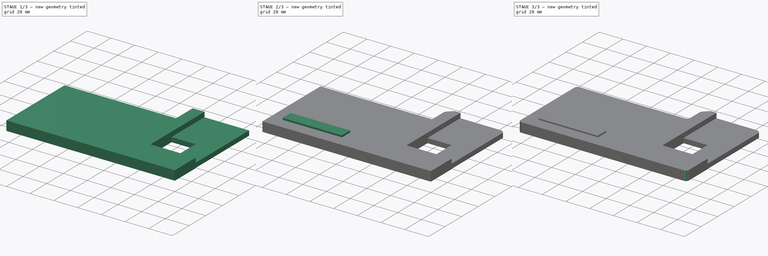
[diagram: build sequence overview — one tinted view per stage of 3, left to right]
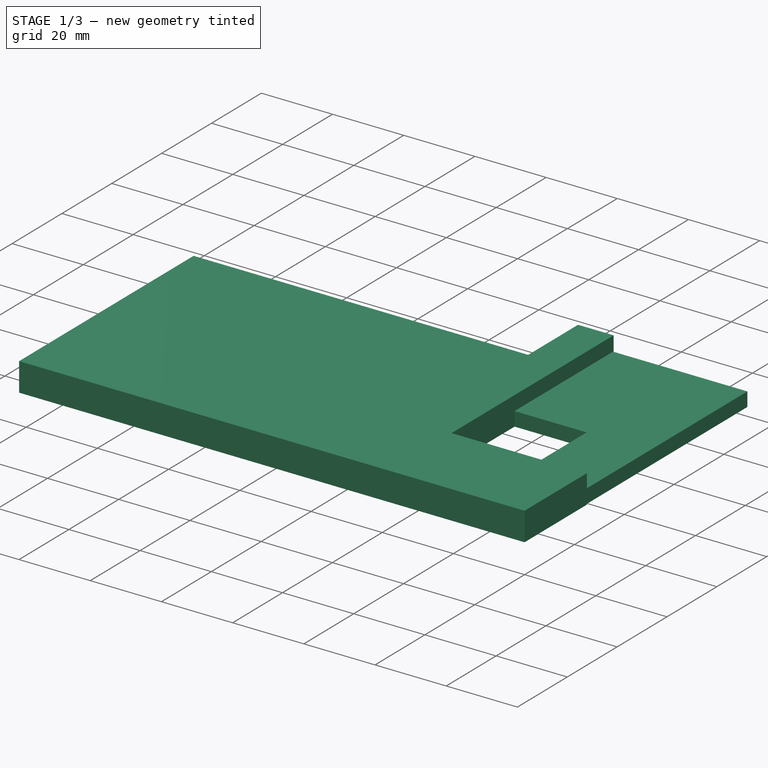
[diagram: stage 1 of 3 — iso view after this stage's code; geometry added in this stage tinted green]
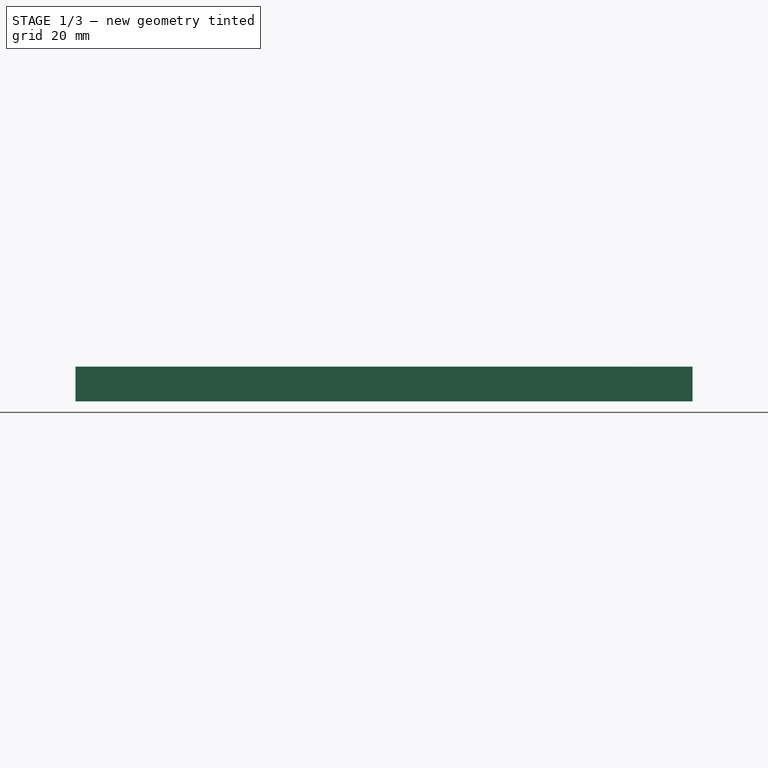
[diagram: stage 1 of 3 — front view after this stage's code; geometry added in this stage tinted green]
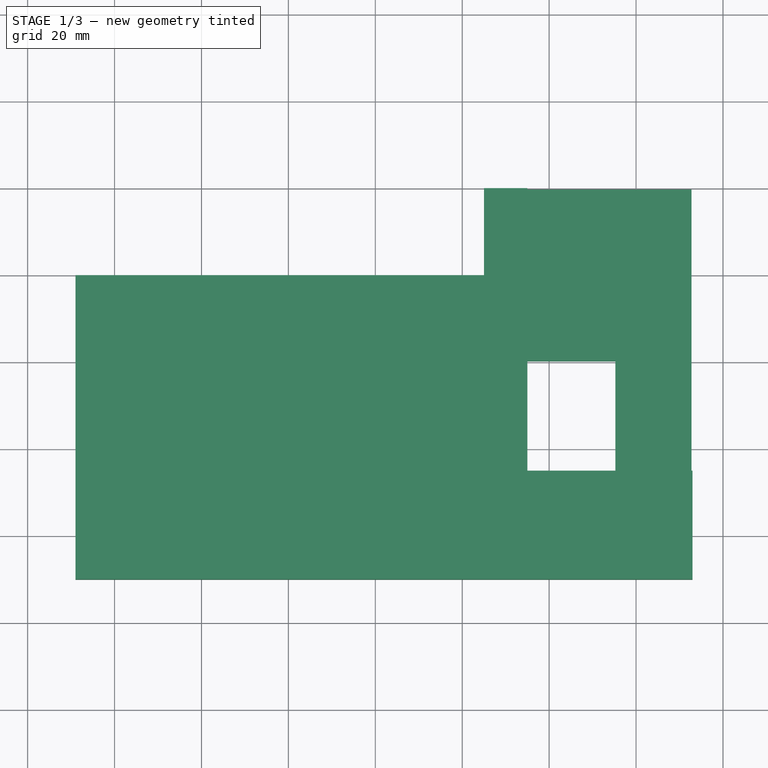
[diagram: stage 1 of 3 — top view after this stage's code; geometry added in this stage tinted green]
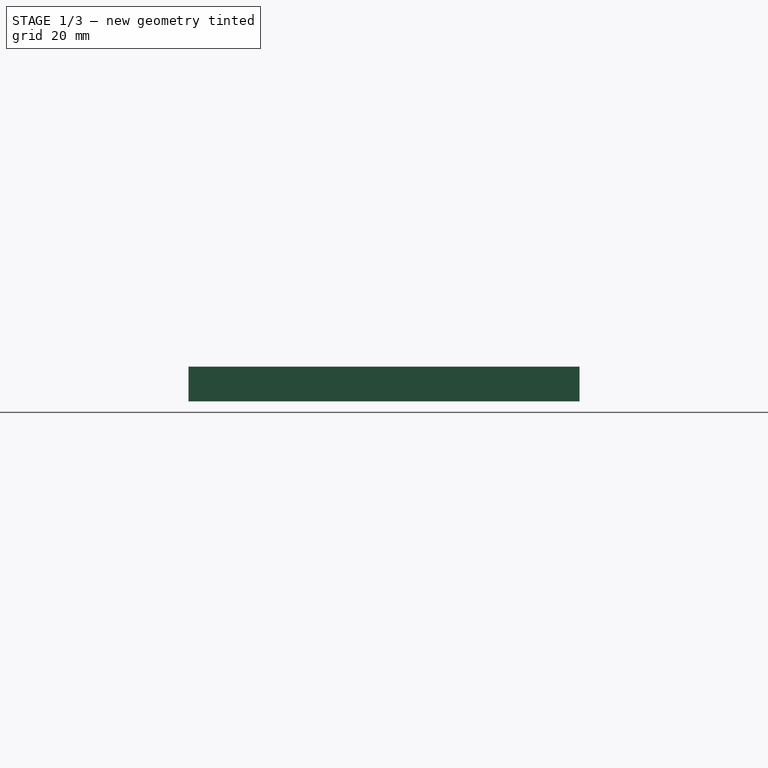
[diagram: stage 1 of 3 — right view after this stage's code; geometry added in this stage tinted green]
FCSTD DOCUMENT  (FreeCAD 1.0R39109 (Git))
Label: PortableMonitor_PhoneBase
License: All rights reserved
LicenseURL: https://en.wikipedia.org/wiki/All_rights_reserved
objects: Sketcher::SketchObject×3, PartDesign::Pad×3, PartDesign::Chamfer×2, PartDesign::Fillet×2, PartDesign::Body×1
note: 28 computed .brp shape members not serialized (recipe doc carries the construction recipe); baked Part::Feature solids carry a one-line shape summary decoded from their .brp

FEATURE [Sketcher::SketchObject] Sketch  label="Sketch_Base_mateWithVESA"
  ArcFitTolerance = 1e-06
  AttachmentSupport = -> [XY_Plane]
  FullyConstrained = true
  MakeInternals = false
  MapMode = 5
  sketch-geometry (20):
    g0: LineSegment [constr] StartX=-45 StartY=-45 StartZ=0 EndX=45 EndY=-45 EndZ=0
    g1: LineSegment [constr] StartX=45 StartY=-45 StartZ=0 EndX=45 EndY=45 EndZ=0
    g2: LineSegment [constr] StartX=45 StartY=45 StartZ=0 EndX=-45 EndY=45 EndZ=0
    g3: LineSegment [constr] StartX=-45 StartY=45 StartZ=0 EndX=-45 EndY=-45 EndZ=0
    g4: GeomPoint [constr] X=0 Y=0 Z=0
    g5: LineSegment [constr] StartX=-45 StartY=-20 StartZ=0 EndX=-25 EndY=-20 EndZ=0
    g6: LineSegment [constr] StartX=-25 StartY=-20 StartZ=0 EndX=-25 EndY=-45 EndZ=0
    g7: LineSegment [constr] StartX=-45 StartY=20 StartZ=0 EndX=-7 EndY=20 EndZ=0
    g8: LineSegment [constr] StartX=-7 StartY=20 StartZ=0 EndX=-7 EndY=-45 EndZ=0
    g9: GeomPoint [constr] X=-45 Y=-5e-16 Z=0
    g10: GeomPoint [constr] X=-16 Y=-45 Z=0
    g11: LineSegment StartX=-45 StartY=19.75 StartZ=0 EndX=-45 EndY=-19.75 EndZ=0
    g12: GeomPoint X=-45 Y=-5e-16 Z=0
    g13: LineSegment StartX=-24.75 StartY=-45 StartZ=0 EndX=-7.25 EndY=-45 EndZ=0
    g14: GeomPoint X=-16 Y=-45 Z=0
    g15: LineSegment StartX=-45 StartY=-19.75 StartZ=0 EndX=-24.75 EndY=-19.75 EndZ=0
    g16: LineSegment StartX=-24.75 StartY=-19.75 StartZ=0 EndX=-24.75 EndY=-45 EndZ=0
    g17: LineSegment StartX=-7.25 StartY=-45 StartZ=0 EndX=-7.25 EndY=19.75 EndZ=0
    g18: GeomPoint [constr] X=-7.25 Y=19.75 Z=0
    g19: LineSegment StartX=-45 StartY=19.75 StartZ=0 EndX=-7.25 EndY=19.75 EndZ=0
  constraints (49):
    c: Coincident(g0,g1)
    c: Coincident(g1,g2)
    c: Coincident(g2,g3)
    c: Coincident(g3,g0)
    c: Horizontal(g0)
    c: Horizontal(g2)
    c: Vertical(g1)
    c: Vertical(g3)
    c: Symmetric(g2,g0,g4)
    c: Distance(g1,g3) = 90
    c: Distance(g0,g2) = 90
    c: Coincident(g4,g-1)
    c: Distance(g5) = 20
    c: Horizontal(g5)
    c: PointOnObject(g5,g3)
    c: Distance(g6) = 25
    c: Coincident(g6,g5)
    c: PointOnObject(g6,g0)
    c: Vertical(g6)
    c: Distance(g7) = 38
    c: Horizontal(g7)
    c: PointOnObject(g7,g3)
    c: Distance(g5,g7) = 40
    c: Coincident(g8,g7)
    c: PointOnObject(g8,g0)
    c: Vertical(g8)
    c: Distance(g8,g6) = 18
    c: Symmetric(g3,g3,g9)
    c: PointOnObject(g10,g0)
    c: DistanceX(g10,g4) = 16
    c: Distance(g11) = 39.5
    c: Vertical(g11)
    c: Symmetric(g11,g11,g12)
    c: Coincident(g12,g9)
    c: Distance(g13) = 17.5
    c: Horizontal(g13)
    c: Symmetric(g13,g13,g14)
    c: Coincident(g14,g10)
    c: Horizontal(g15)
    c: Coincident(g15,g11)
    c: DistanceX(g15,g15) = 20.25
    c: Coincident(g16,g15)
    c: Coincident(g16,g13)
    c: DistanceY(g18,g7) = 0.25
    c: DistanceX(g18,g7) = 0.25
    c: Coincident(g17,g18)
    c: Coincident(g17,g13)
    c: Coincident(g19,g11)
    c: Coincident(g19,g17)
FEATURE [PartDesign::Pad] Pad  label="Base_mateWithVESA"
  Direction = (0,0,1)
  Length = 3.95
  Length2 = 10
  Profile = -> Sketch
  ReferenceAxis = -> Sketch [N_Axis]
  Refine = true
  Suppressed = false
  Type = 0
FEATURE [Sketcher::SketchObject] Sketch002  label="Sketch_Base_PhonePlaceMent"
  ArcFitTolerance = 1e-06
  AttachmentSupport = -> [XY_Plane]
  FullyConstrained = true
  MakeInternals = false
  MapMode = 5
  sketch-geometry (34):
    g0: LineSegment [constr] StartX=-45 StartY=-45 StartZ=0 EndX=45 EndY=-45 EndZ=0
    g1: LineSegment [constr] StartX=45 StartY=-45 StartZ=0 EndX=45 EndY=45 EndZ=0
    g2: LineSegment [constr] StartX=45 StartY=45 StartZ=0 EndX=-45 EndY=45 EndZ=0
    g3: LineSegment [constr] StartX=-45 StartY=45 StartZ=0 EndX=-45 EndY=-45 EndZ=0
    g4: GeomPoint [constr] X=0 Y=0 Z=0
    g5: LineSegment [constr] StartX=-45 StartY=-20 StartZ=0 EndX=-25 EndY=-20 EndZ=0
    g6: LineSegment [constr] StartX=-25 StartY=-20 StartZ=0 EndX=-25 EndY=-45 EndZ=0
    g7: LineSegment [constr] StartX=-45 StartY=20 StartZ=0 EndX=-7 EndY=20 EndZ=0
    g8: LineSegment [constr] StartX=-7 StartY=20 StartZ=0 EndX=-7 EndY=-45 EndZ=0
    g9: GeomPoint [constr] X=-45 Y=1.1e-15 Z=0
    g10: GeomPoint [constr] X=-16 Y=-45 Z=0
    g11: LineSegment [constr] StartX=-45 StartY=19.75 StartZ=0 EndX=-45 EndY=-19.75 EndZ=0
    g12: GeomPoint [constr] X=-45 Y=1.1e-15 Z=0
    g13: LineSegment [constr] StartX=-24.75 StartY=-45 StartZ=0 EndX=-7.25 EndY=-45 EndZ=0
    g14: GeomPoint [constr] X=-16 Y=-45 Z=0
    g15: LineSegment [constr] StartX=-45 StartY=-19.75 StartZ=0 EndX=-24.75 EndY=-19.75 EndZ=0
    g16: LineSegment [constr] StartX=-24.75 StartY=-19.75 StartZ=0 EndX=-24.75 EndY=-45 EndZ=0
    g17: LineSegment [constr] StartX=-7.25 StartY=-45 StartZ=0 EndX=-7.25 EndY=19.75 EndZ=0
    g18: GeomPoint [constr] X=-7.25 Y=19.75 Z=0
    g19: LineSegment [constr] StartX=-45 StartY=19.75 StartZ=0 EndX=-7.25 EndY=19.75 EndZ=0
    g20: LineSegment [constr] StartX=-7.25 StartY=-45 StartZ=0 EndX=-7 EndY=-45 EndZ=0
    g21: LineSegment [constr] StartX=-37.5 StartY=-37.5 StartZ=0 EndX=37.5 EndY=-37.5 EndZ=0
    g22: LineSegment [constr] StartX=37.5 StartY=-37.5 StartZ=0 EndX=37.5 EndY=37.5 EndZ=0
    g23: LineSegment [constr] StartX=37.5 StartY=37.5 StartZ=0 EndX=-37.5 EndY=37.5 EndZ=0
    g24: LineSegment [constr] StartX=-37.5 StartY=37.5 StartZ=0 EndX=-37.5 EndY=-37.5 EndZ=0
    g25: GeomPoint [constr] X=0 Y=0 Z=0
    g26: LineSegment StartX=-45 StartY=20 StartZ=0 EndX=-55 EndY=20 EndZ=0
    g27: LineSegment StartX=-149 StartY=-70 StartZ=0 EndX=-149 EndY=0 EndZ=0
    g28: LineSegment StartX=-55 StartY=20 StartZ=0 EndX=-55 EndY=0 EndZ=0
    g29: LineSegment StartX=-149 StartY=0 StartZ=0 EndX=-55 EndY=0 EndZ=0
    g30: LineSegment StartX=-45 StartY=20 StartZ=0 EndX=-45 EndY=-45 EndZ=0
    g31: LineSegment StartX=-45 StartY=-45 StartZ=0 EndX=-7 EndY=-45 EndZ=0
    g32: LineSegment StartX=-7 StartY=-45 StartZ=0 EndX=-7 EndY=-70 EndZ=0
    g33: LineSegment StartX=-7 StartY=-70 StartZ=0 EndX=-149 EndY=-70 EndZ=0
  constraints (88):
    c: Coincident(g0,g1)
    c: Coincident(g1,g2)
    c: Coincident(g2,g3)
    c: Coincident(g3,g0)
    c: Horizontal(g0)
    c: Horizontal(g2)
    c: Vertical(g1)
    c: Vertical(g3)
    c: Symmetric(g2,g0,g4)
    c: Distance(g1,g3) = 90
    c: Distance(g0,g2) = 90
    c: Coincident(g4,g-1)
    c: Distance(g5) = 20
    c: Horizontal(g5)
    c: PointOnObject(g5,g3)
    c: Distance(g6) = 25
    c: Coincident(g6,g5)
    c: PointOnObject(g6,g0)
    c: Vertical(g6)
    c: Distance(g7) = 38
    c: Horizontal(g7)
    c: PointOnObject(g7,g3)
    c: Distance(g5,g7) = 40
    c: Coincident(g8,g7)
    c: PointOnObject(g8,g0)
    c: Vertical(g8)
    c: Distance(g8,g6) = 18
    c: Symmetric(g3,g3,g9)
    c: PointOnObject(g10,g0)
    c: DistanceX(g10,g4) = 16
    c: Distance(g11) = 39.5
    c: Vertical(g11)
    c: Symmetric(g11,g11,g12)
    c: Coincident(g12,g9)
    c: Distance(g13) = 17.5
    c: Horizontal(g13)
    c: Symmetric(g13,g13,g14)
    c: Coincident(g14,g10)
    c: Horizontal(g15)
    c: Coincident(g15,g11)
    c: DistanceX(g15,g15) = 20.25
    c: Coincident(g16,g15)
    c: Coincident(g16,g13)
    c: DistanceY(g18,g7) = 0.25
    c: DistanceX(g18,g7) = 0.25
    c: Coincident(g17,g18)
    c: Coincident(g17,g13)
    c: Coincident(g19,g11)
    c: Coincident(g19,g17)
    c: Coincident(g20,g13)
    c: Coincident(g20,g8)
    c: Coincident(g21,g22)
    c: Coincident(g22,g23)
    c: Coincident(g23,g24)
    c: Coincident(g24,g21)
    c: Horizontal(g21)
    c: Horizontal(g23)
    c: Vertical(g22)
    c: Vertical(g24)
    c: Symmetric(g23,g21,g25)
    c: Distance(g22,g24) = 75
    c: Distance(g21,g23) = 75
    c: Coincident(g25,g4)
    c: Distance(g26) = 10
    c: Coincident(g26,g7)
    c: Horizontal(g26)
    c: PointOnObject(g27,g-1)
    c: Vertical(g27)
    c: Coincident(g28,g26)
    c: PointOnObject(g28,g-1)
    c: Vertical(g28)
    c: Coincident(g29,g27)
    c: Coincident(g29,g28)
    c: Coincident(g30,g7)
    c: Coincident(g30,g0)
    c: Distance(g31) = 38
    c: Coincident(g31,g0)
    c: PointOnObject(g31,g0)
    c: Distance(g32) = 25
    c: Coincident(g32,g31)
    c: Vertical(g32)
    c: Coincident(g33,g32)
    c: Coincident(g33,g27)
    c: Horizontal(g33)
    c: DistanceX(g29,g29) = 94
    c: DistanceX(g33,g33) = 142
    c: DistanceX(g27,g4) = 149
    c: DistanceY(g27,g27) = 70
FEATURE [PartDesign::Pad] Pad001  label="Base_PhonePlaceMent"
  BaseFeature = -> Pad
  Direction = (0,0,1)
  Length = 8
  Length2 = 10
  Profile = -> Sketch002
  ReferenceAxis = -> Sketch002 [N_Axis]
  Refine = true
  Suppressed = false
  Type = 0
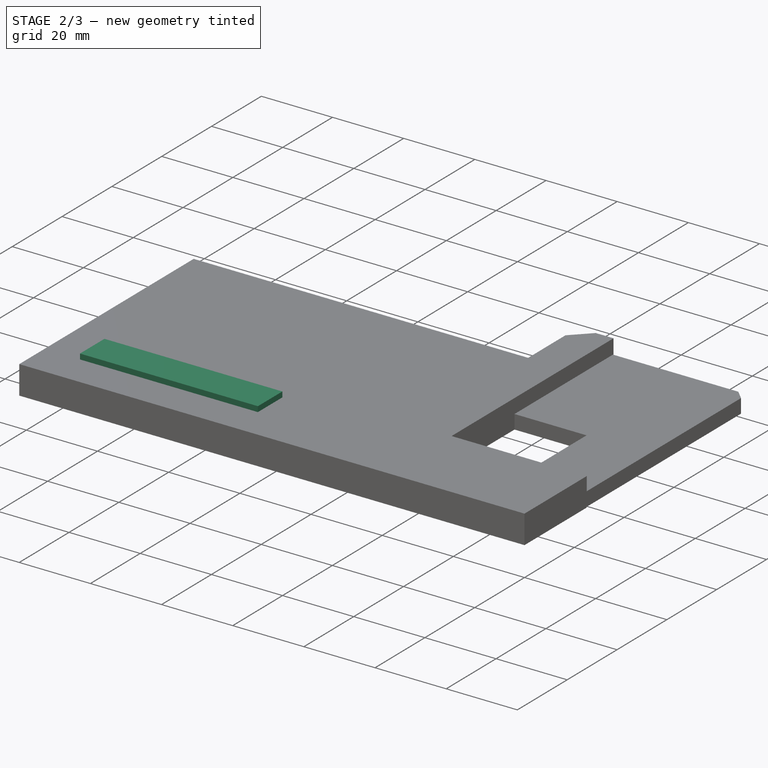
[diagram: stage 2 of 3 — iso view after this stage's code; geometry added in this stage tinted green]
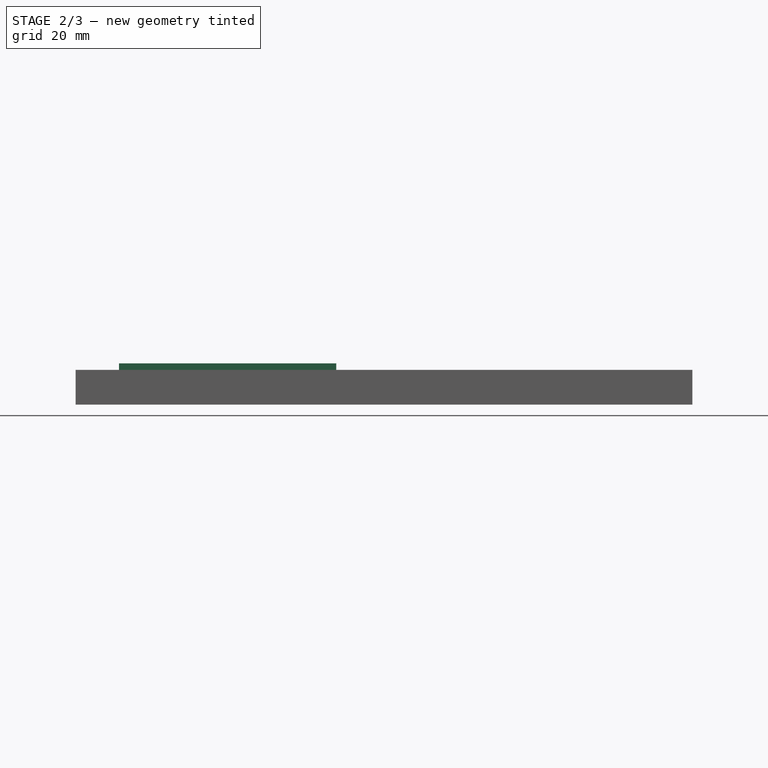
[diagram: stage 2 of 3 — front view after this stage's code; geometry added in this stage tinted green]
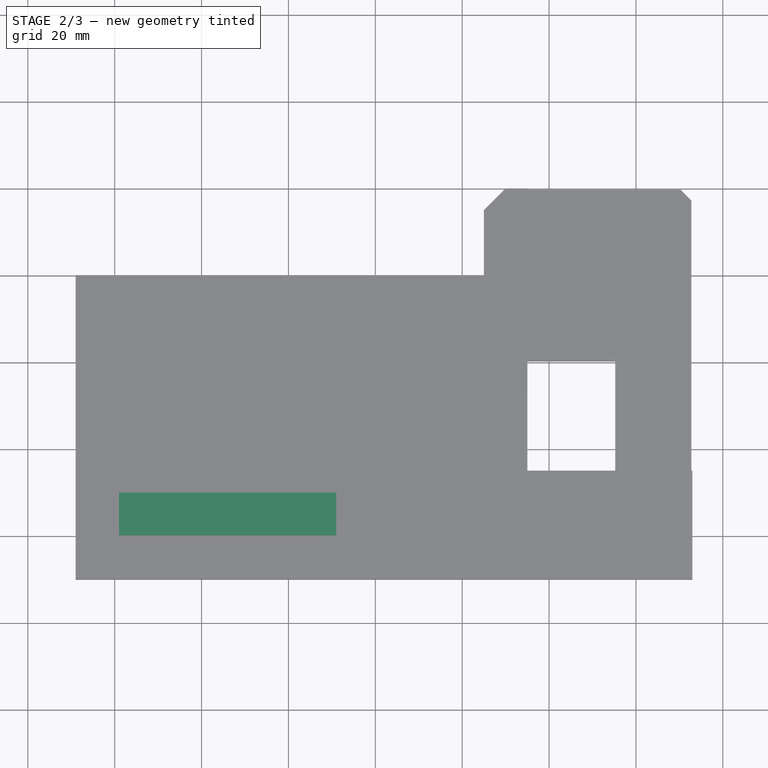
[diagram: stage 2 of 3 — top view after this stage's code; geometry added in this stage tinted green]
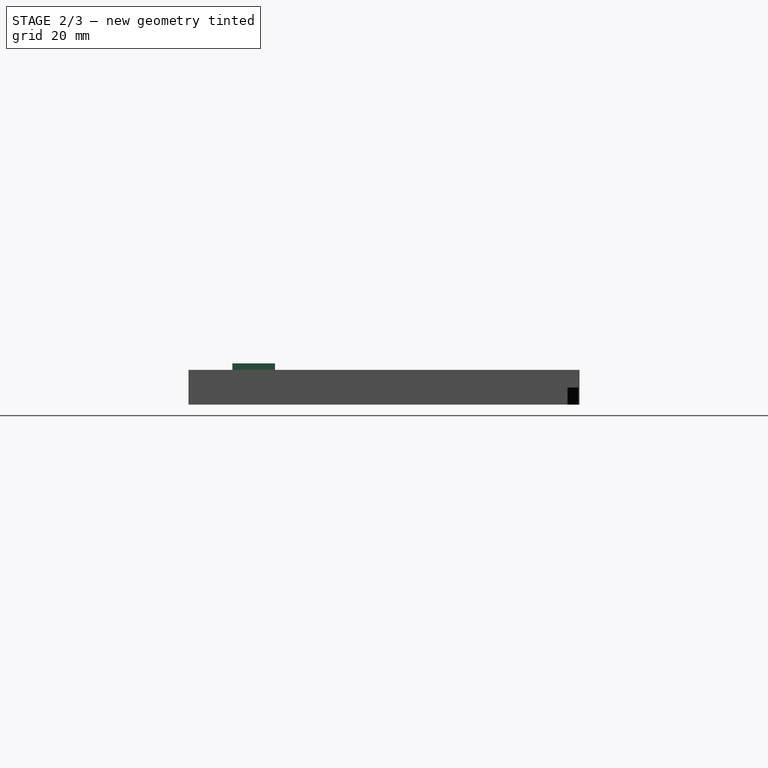
[diagram: stage 2 of 3 — right view after this stage's code; geometry added in this stage tinted green]
FEATURE [Sketcher::SketchObject] Sketch003  label="Sketch_Hole_MatePhone"
  ArcFitTolerance = 1e-06
  AttachmentSupport = -> [Pad001]
  FullyConstrained = true
  MakeInternals = false
  MapMode = 5
  Placement = pos=(0,0,8) rot=(0,0,1;0rad)
  sketch-geometry (7):
    g0: GeomPoint [constr] X=-149 Y=-70 Z=0
    g1: GeomPoint [constr] X=-139 Y=-59.9 Z=0
    g2: LineSegment StartX=-139 StartY=-59.9 StartZ=0 EndX=-89 EndY=-59.9 EndZ=0
    g3: LineSegment StartX=-89 StartY=-59.9 StartZ=0 EndX=-89 EndY=-50.1 EndZ=0
    g4: LineSegment StartX=-89 StartY=-50.1 StartZ=0 EndX=-139 EndY=-50.1 EndZ=0
    g5: LineSegment StartX=-139 StartY=-50.1 StartZ=0 EndX=-139 EndY=-59.9 EndZ=0
    g6: GeomPoint [constr] X=-114 Y=-55 Z=0
  constraints (16):
    c: DistanceX(g0,g-1) = 149
    c: Distance(g0,g-1) = 70
    c: DistanceX(g0,g1) = 10
    c: Coincident(g2,g3)
    c: Coincident(g3,g4)
    c: Coincident(g4,g5)
    c: Coincident(g5,g2)
    c: Horizontal(g2)
    c: Horizontal(g4)
    c: Vertical(g3)
    c: Vertical(g5)
    c: Symmetric(g4,g2,g6)
    c: Distance(g3,g5) = 50
    c: Distance(g2,g4) = 9.8
    c: Coincident(g2,g1)
    c: DistanceY(g0,g6) = 15
FEATURE [PartDesign::Pad] Pad002  label="MatePhone"
  BaseFeature = -> Pad001
  Direction = (0,0,1)
  Length = 1.5
  Length2 = 10
  Profile = -> Sketch003
  ReferenceAxis = -> Sketch003 [N_Axis]
  Refine = true
  Suppressed = false
  Type = 0
FEATURE [PartDesign::Chamfer] Chamfer  label="Chamfer_VESAMountInner"
  Angle = 45
  Base = -> Pad002 [Edge28]
  BaseFeature = -> Pad002
  ChamferType = 0
  FlipDirection = false
  Refine = true
  Size = 2.5
  Size2 = 1
  SupportTransform = false
  Suppressed = false
  UseAllEdges = false
FEATURE [PartDesign::Chamfer] Chamfer001  label="Chamfer_PhoneHouseIdx"
  Angle = 45
  Base = -> Chamfer [Edge36]
  BaseFeature = -> Chamfer
  ChamferType = 0
  FlipDirection = false
  Refine = true
  Size = 5
  Size2 = 1
  SupportTransform = false
  Suppressed = false
  UseAllEdges = false
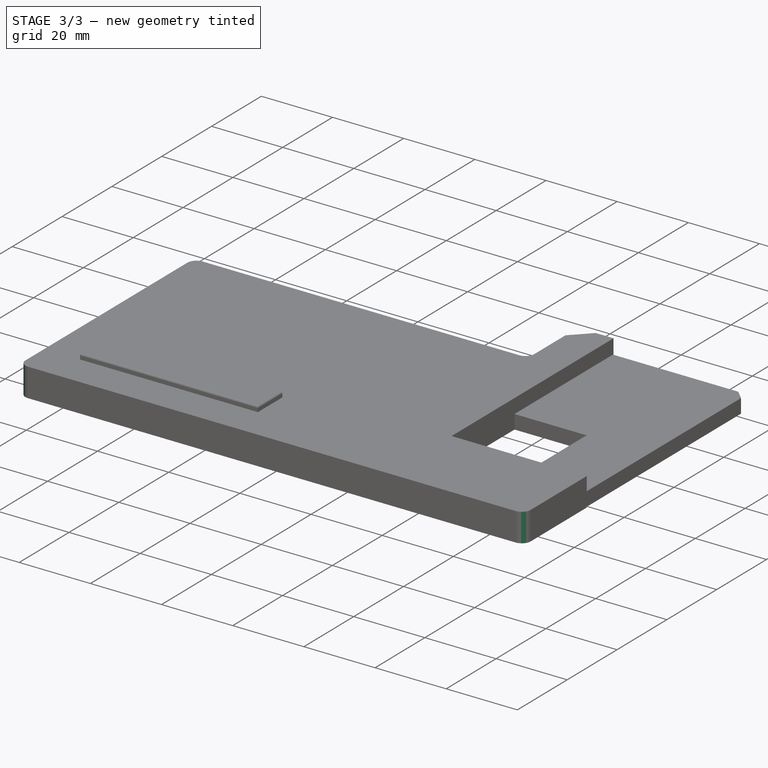
[diagram: stage 3 of 3 — iso view after this stage's code; geometry added in this stage tinted green]
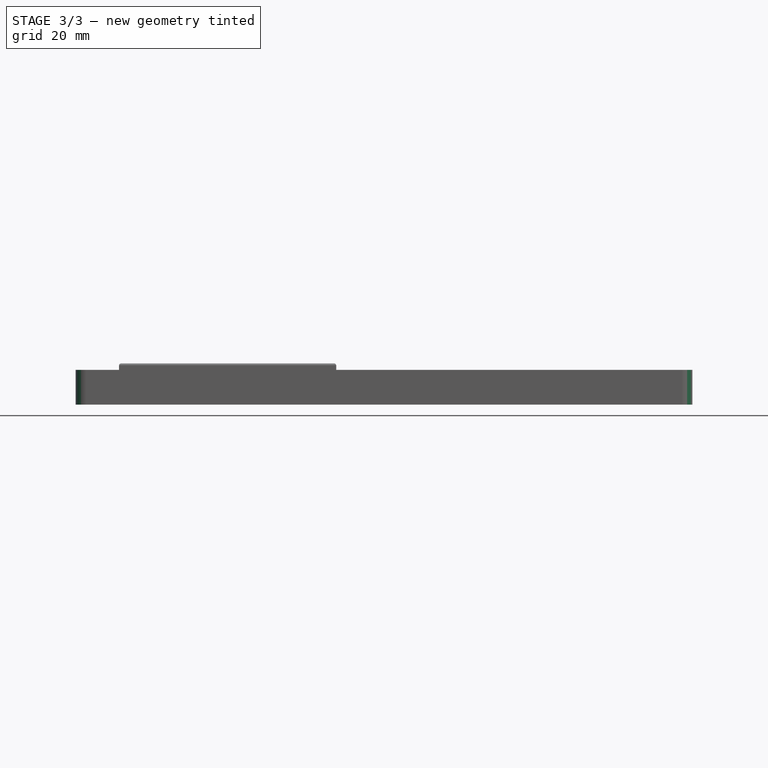
[diagram: stage 3 of 3 — front view after this stage's code; geometry added in this stage tinted green]
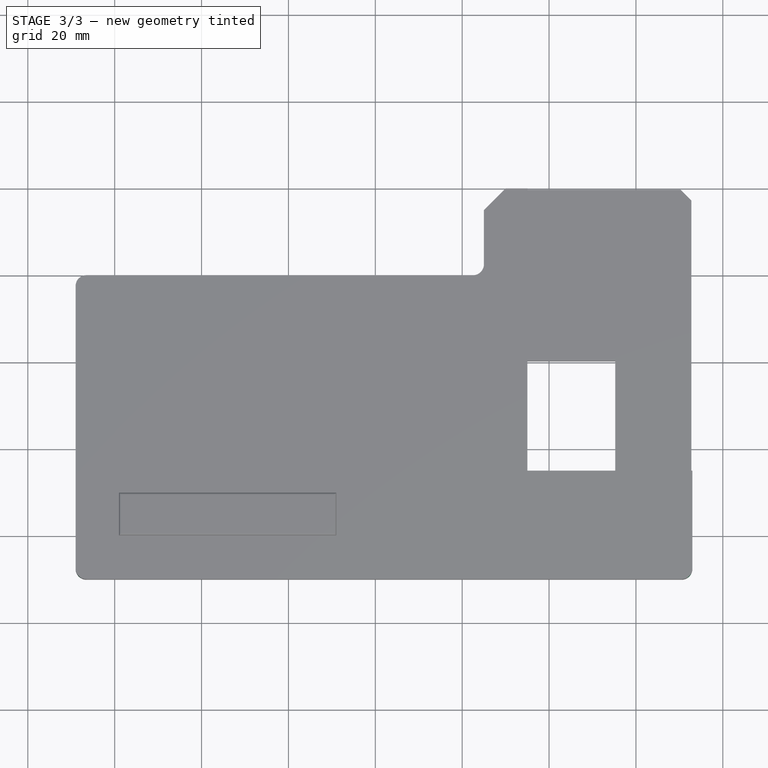
[diagram: stage 3 of 3 — top view after this stage's code; geometry added in this stage tinted green]
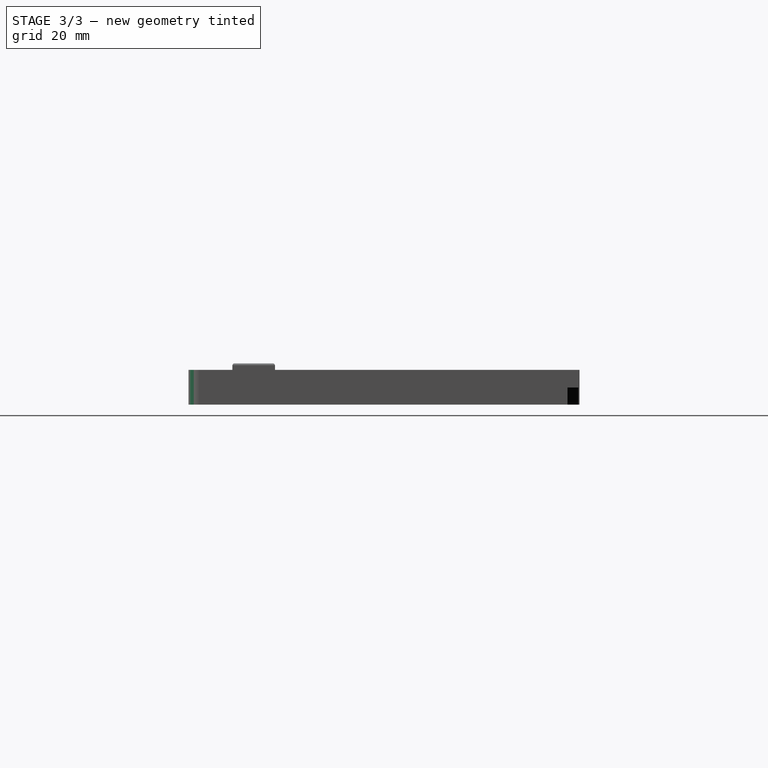
[diagram: stage 3 of 3 — right view after this stage's code; geometry added in this stage tinted green]
FEATURE [PartDesign::Fillet] Fillet  label="Fillet_PhoneHouseCorner"
  Base = -> Chamfer001 [Edge27,Edge31,Edge35,Edge39]
  BaseFeature = -> Chamfer001
  Radius = 2.5
  Refine = true
  SupportTransform = false
  Suppressed = false
  UseAllEdges = false
FEATURE [PartDesign::Fillet] Fillet001  label="Fillet_Mount"
  Base = -> Fillet [Edge67,Edge69,Edge71,Edge72]
  BaseFeature = -> Fillet
  Radius = 0.5
  Refine = true
  SupportTransform = false
  Suppressed = false
  UseAllEdges = false
FEATURE [PartDesign::Body] Body  label="Body_PhoneHouse"
  AllowCompound = false
  Group = -> [Sketch,Pad,Sketch002,Pad001,Sketch003,Pad002,Chamfer,Chamfer001,Fillet,Fillet001]
  Origin = -> Origin
  Tip = -> Fillet001
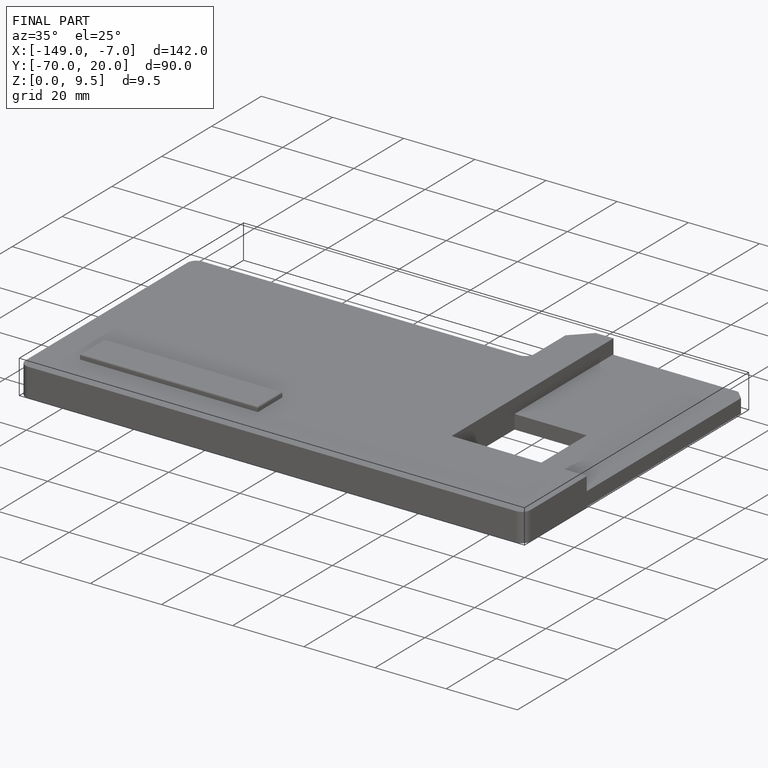
[diagram: finished part — iso view with bounding-box wireframe]
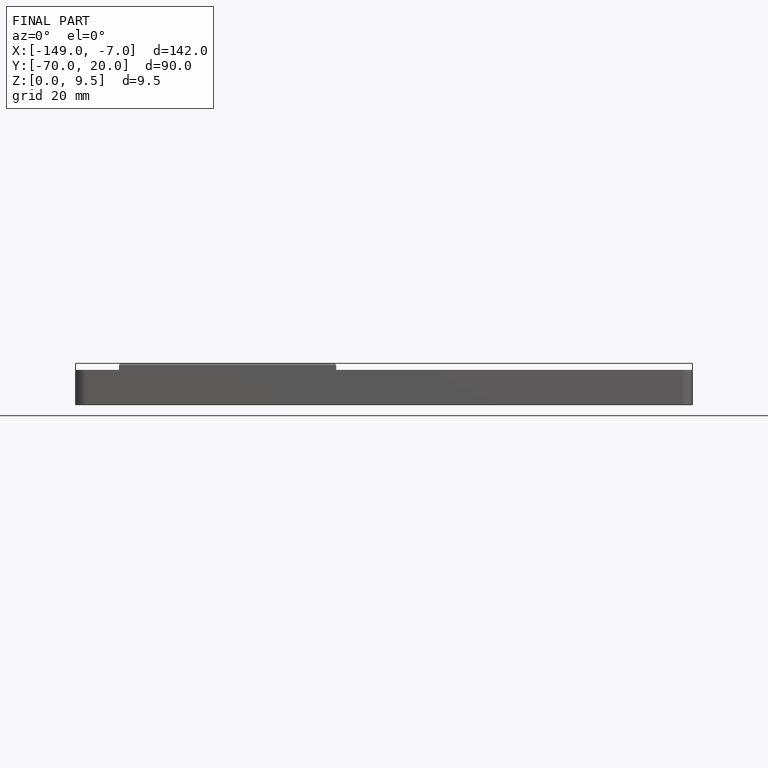
[diagram: finished part — front view with bounding-box wireframe]
